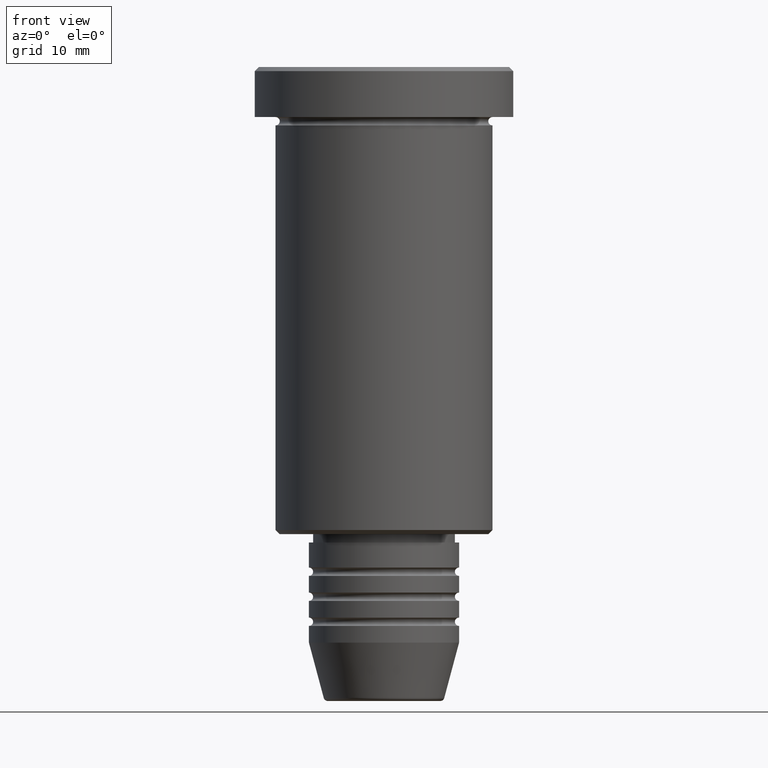
[diagram: clean part render]
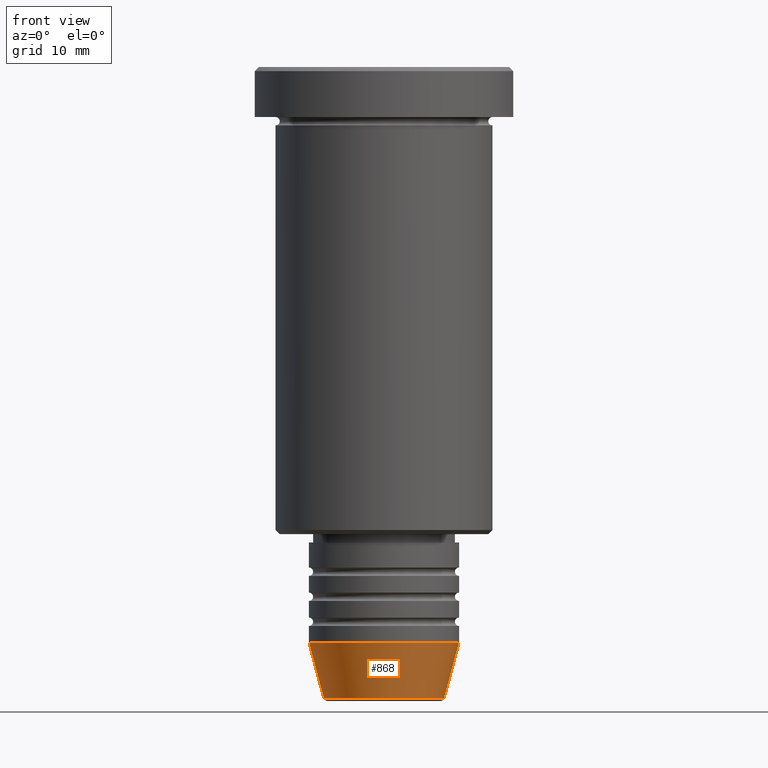
[diagram: same view with one face highlighted and labeled with its STEP entity id]
A machine part, front view. The second image highlights one B-rep face of the part: STEP entity #868.
In plain terms, the highlighted conical surface has half-angle 15 deg.
Its self-contained STEP definition (entity closure, byte-faithful):
#1 = VERTEX_POINT ( 'NONE', #1119 ) ;
#7 = DIRECTION ( 'NONE',  ( 1.000000000000000000, 0.000000000000000000, 0.000000000000000000 ) ) ;
#57 = CARTESIAN_POINT ( 'NONE',  ( -9.000000000000000000, 1.102182119232617714E-15, -69.00000000000000000 ) ) ;
#68 = CIRCLE ( 'NONE', #1044, 7.223655072137188604 ) ;
#149 = LINE ( 'NONE', #1153, #402 ) ;
#167 = CIRCLE ( 'NONE', #761, 9.000000000000000000 ) ;
#173 = CARTESIAN_POINT ( 'NONE',  ( -9.000000000000000000, 1.102182119232617714E-15, -69.00000000000000000 ) ) ;
#223 = EDGE_CURVE ( 'NONE', #998, #1, #167, .T. ) ;
#225 = CARTESIAN_POINT ( 'NONE',  ( 0.000000000000000000, 0.000000000000000000, -69.00000000000000000 ) ) ;
#296 = ORIENTED_EDGE ( 'NONE', *, *, #485, .T. ) ;
#317 = CARTESIAN_POINT ( 'NONE',  ( 0.000000000000000000, 0.000000000000000000, -75.62940952255127058 ) ) ;
#342 = EDGE_CURVE ( 'NONE', #779, #577, #68, .T. ) ;
#402 = VECTOR ( 'NONE', #1146, 1000.000000000000000 ) ;
#444 = DIRECTION ( 'NONE',  ( -0.000000000000000000, -0.000000000000000000, 1.000000000000000000 ) ) ;
#450 = EDGE_LOOP ( 'NONE', ( #1109, #656, #296, #570 ) ) ;
#485 = EDGE_CURVE ( 'NONE', #577, #1, #149, .T. ) ;
#501 = DIRECTION ( 'NONE',  ( -0.000000000000000000, -0.000000000000000000, 1.000000000000000000 ) ) ;
#570 = ORIENTED_EDGE ( 'NONE', *, *, #223, .F. ) ;
#575 = CARTESIAN_POINT ( 'NONE',  ( -7.223655072137189492, 9.934123627281765110E-16, -75.62940952255127058 ) ) ;
#577 = VERTEX_POINT ( 'NONE', #891 ) ;
#581 = DIRECTION ( 'NONE',  ( 1.000000000000000000, 0.000000000000000000, 0.000000000000000000 ) ) ;
#656 = ORIENTED_EDGE ( 'NONE', *, *, #342, .T. ) ;
#681 = FACE_OUTER_BOUND ( 'NONE', #450, .T. ) ;
#731 = EDGE_CURVE ( 'NONE', #779, #998, #809, .T. ) ;
#761 = AXIS2_PLACEMENT_3D ( 'NONE', #996, #444, #7 ) ;
#775 = VECTOR ( 'NONE', #1181, 1000.000000000000000 ) ;
#779 = VERTEX_POINT ( 'NONE', #575 ) ;
#794 = AXIS2_PLACEMENT_3D ( 'NONE', #225, #870, #581 ) ;
#795 = CONICAL_SURFACE ( 'NONE', #794, 9.000000000000000000, 0.2617993877991500740 ) ;
#809 = LINE ( 'NONE', #173, #775 ) ;
#868 = ADVANCED_FACE ( 'NONE', ( #681 ), #795, .T. ) ;
#870 = DIRECTION ( 'NONE',  ( -0.000000000000000000, -0.000000000000000000, 1.000000000000000000 ) ) ;
#891 = CARTESIAN_POINT ( 'NONE',  ( 7.223655072137188604, 0.000000000000000000, -75.62940952255127058 ) ) ;
#996 = CARTESIAN_POINT ( 'NONE',  ( 0.000000000000000000, 0.000000000000000000, -69.00000000000000000 ) ) ;
#998 = VERTEX_POINT ( 'NONE', #57 ) ;
#1044 = AXIS2_PLACEMENT_3D ( 'NONE', #317, #501, #1111 ) ;
#1109 = ORIENTED_EDGE ( 'NONE', *, *, #731, .F. ) ;
#1111 = DIRECTION ( 'NONE',  ( 1.000000000000000000, 0.000000000000000000, 0.000000000000000000 ) ) ;
#1119 = CARTESIAN_POINT ( 'NONE',  ( 9.000000000000000000, 0.000000000000000000, -69.00000000000000000 ) ) ;
#1146 = DIRECTION ( 'NONE',  ( 0.2588190451025213501, 0.000000000000000000, 0.9659258262890680902 ) ) ;
#1153 = CARTESIAN_POINT ( 'NONE',  ( 9.000000000000000000, 0.000000000000000000, -69.00000000000000000 ) ) ;
#1181 = DIRECTION ( 'NONE',  ( -0.2588190451025213501, 3.169619151431772337E-17, 0.9659258262890680902 ) ) ;